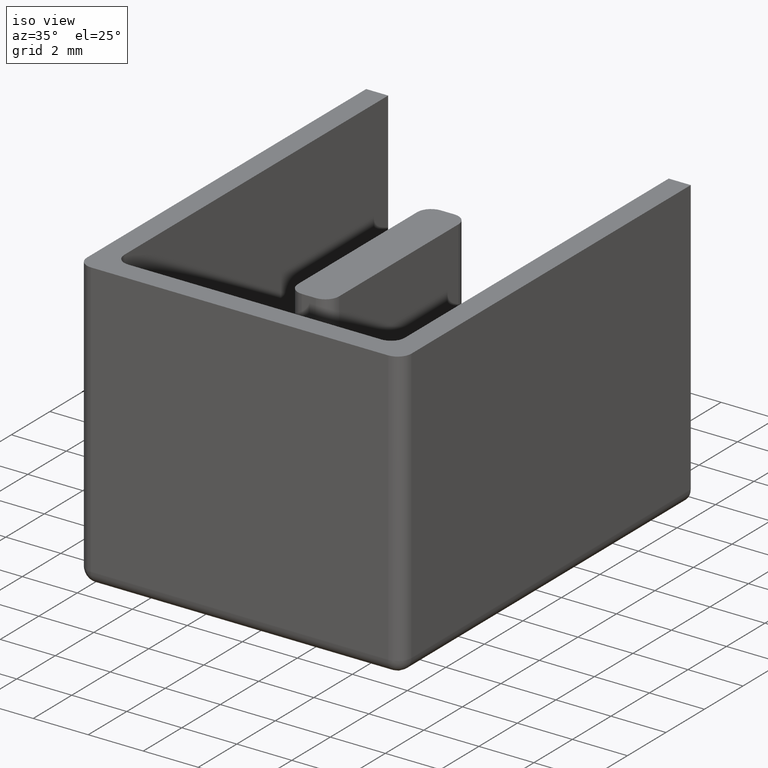
[diagram: clean part render]
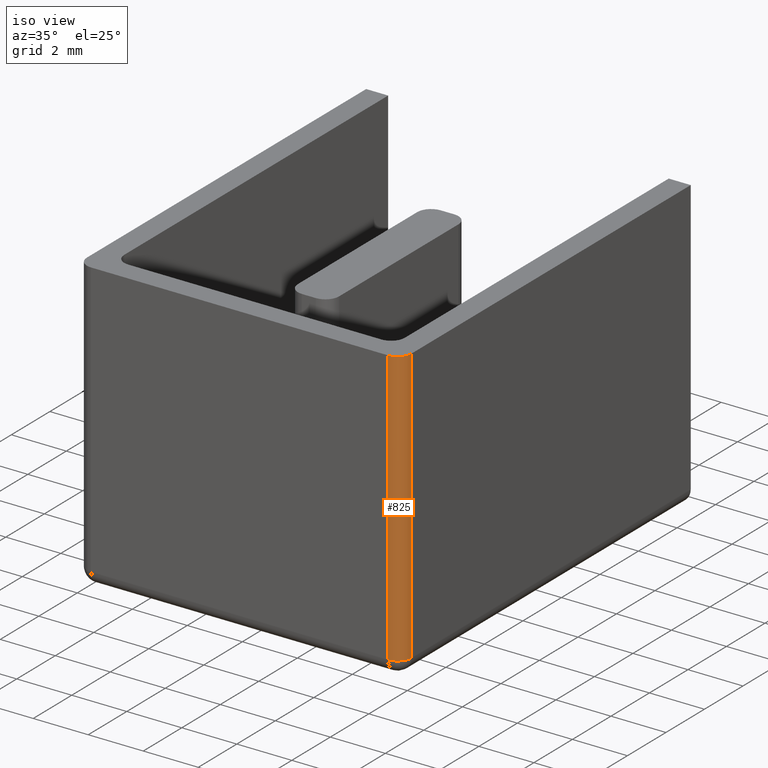
[diagram: same view with one face highlighted and labeled with its STEP entity id]
A machine part, iso view. The second image highlights one B-rep face of the part: STEP entity #825.
In plain terms, the highlighted cylindrical surface (edge-blend (fillet) strip) has radius 0.5 mm, axis along (0, 0, -1).
Its self-contained STEP definition (entity closure, byte-faithful):
#29 = AXIS2_PLACEMENT_3D ( 'NONE', #662, #658, #667 ) ;
#36 = AXIS2_PLACEMENT_3D ( 'NONE', #512, #534, #535 ) ;
#75 = CIRCLE ( 'NONE', #29, 0.5000000000000004400 ) ;
#108 = VECTOR ( 'NONE', #706, 1000.000000000000000 ) ;
#111 = AXIS2_PLACEMENT_3D ( 'NONE', #698, #701, #713 ) ;
#113 = CIRCLE ( 'NONE', #111, 0.5000000000000004400 ) ;
#117 = VECTOR ( 'NONE', #712, 1000.000000000000000 ) ;
#163 = ORIENTED_EDGE ( 'NONE', *, *, #886, .F. ) ;
#233 = ORIENTED_EDGE ( 'NONE', *, *, #879, .F. ) ;
#253 = ORIENTED_EDGE ( 'NONE', *, *, #861, .F. ) ;
#262 = ORIENTED_EDGE ( 'NONE', *, *, #887, .F. ) ;
#292 = EDGE_LOOP ( 'NONE', ( #253, #233, #163, #262 ) ) ;
#328 = CARTESIAN_POINT ( 'NONE',  ( 11.30000000000000100, 0.0000000000000000000, 10.50000000000000000 ) ) ;
#336 = CARTESIAN_POINT ( 'NONE',  ( 11.30000000000000100, 0.0000000000000000000, 0.5000000000000004400 ) ) ;
#352 = VERTEX_POINT ( 'NONE', #328 ) ;
#364 = VERTEX_POINT ( 'NONE', #336 ) ;
#379 = VERTEX_POINT ( 'NONE', #426 ) ;
#384 = VERTEX_POINT ( 'NONE', #388 ) ;
#388 = CARTESIAN_POINT ( 'NONE',  ( 11.80000000000000100, 0.5000000000000004400, 0.5000000000000004400 ) ) ;
#426 = CARTESIAN_POINT ( 'NONE',  ( 11.80000000000000100, 0.4999999999999997800, 10.50000000000000000 ) ) ;
#499 = CYLINDRICAL_SURFACE ( 'NONE', #36, 0.5000000000000004400 ) ;
#512 = CARTESIAN_POINT ( 'NONE',  ( 11.30000000000000100, 0.4999999999999997800, 10.50000000000000000 ) ) ;
#521 = FACE_OUTER_BOUND ( 'NONE', #292, .T. ) ;
#534 = DIRECTION ( 'NONE',  ( 0.0000000000000000000, 0.0000000000000000000, -1.000000000000000000 ) ) ;
#535 = DIRECTION ( 'NONE',  ( -1.000000000000000000, 0.0000000000000000000, 0.0000000000000000000 ) ) ;
#658 = DIRECTION ( 'NONE',  ( -0.0000000000000000000, -0.0000000000000000000, 1.000000000000000000 ) ) ;
#662 = CARTESIAN_POINT ( 'NONE',  ( 11.30000000000000100, 0.4999999999999997800, 10.50000000000000000 ) ) ;
#667 = DIRECTION ( 'NONE',  ( -1.000000000000000000, 0.0000000000000000000, 0.0000000000000000000 ) ) ;
#675 = CARTESIAN_POINT ( 'NONE',  ( 11.30000000000000100, 0.0000000000000000000, 10.50000000000000000 ) ) ;
#679 = LINE ( 'NONE', #675, #108 ) ;
#685 = LINE ( 'NONE', #704, #117 ) ;
#698 = CARTESIAN_POINT ( 'NONE',  ( 11.30000000000000100, 0.4999999999999997800, 0.5000000000000004400 ) ) ;
#701 = DIRECTION ( 'NONE',  ( 0.0000000000000000000, 0.0000000000000000000, -1.000000000000000000 ) ) ;
#704 = CARTESIAN_POINT ( 'NONE',  ( 11.80000000000000100, 0.4999999999999997800, 10.50000000000000000 ) ) ;
#706 = DIRECTION ( 'NONE',  ( -0.0000000000000000000, -0.0000000000000000000, 1.000000000000000000 ) ) ;
#712 = DIRECTION ( 'NONE',  ( 0.0000000000000000000, 0.0000000000000000000, -1.000000000000000000 ) ) ;
#713 = DIRECTION ( 'NONE',  ( -1.000000000000000000, 0.0000000000000000000, 0.0000000000000000000 ) ) ;
#825 = ADVANCED_FACE ( 'NONE', ( #521 ), #499, .T. ) ;
#861 = EDGE_CURVE ( 'NONE', #352, #379, #75, .T. ) ;
#879 = EDGE_CURVE ( 'NONE', #364, #352, #679, .T. ) ;
#886 = EDGE_CURVE ( 'NONE', #384, #364, #113, .T. ) ;
#887 = EDGE_CURVE ( 'NONE', #379, #384, #685, .T. ) ;